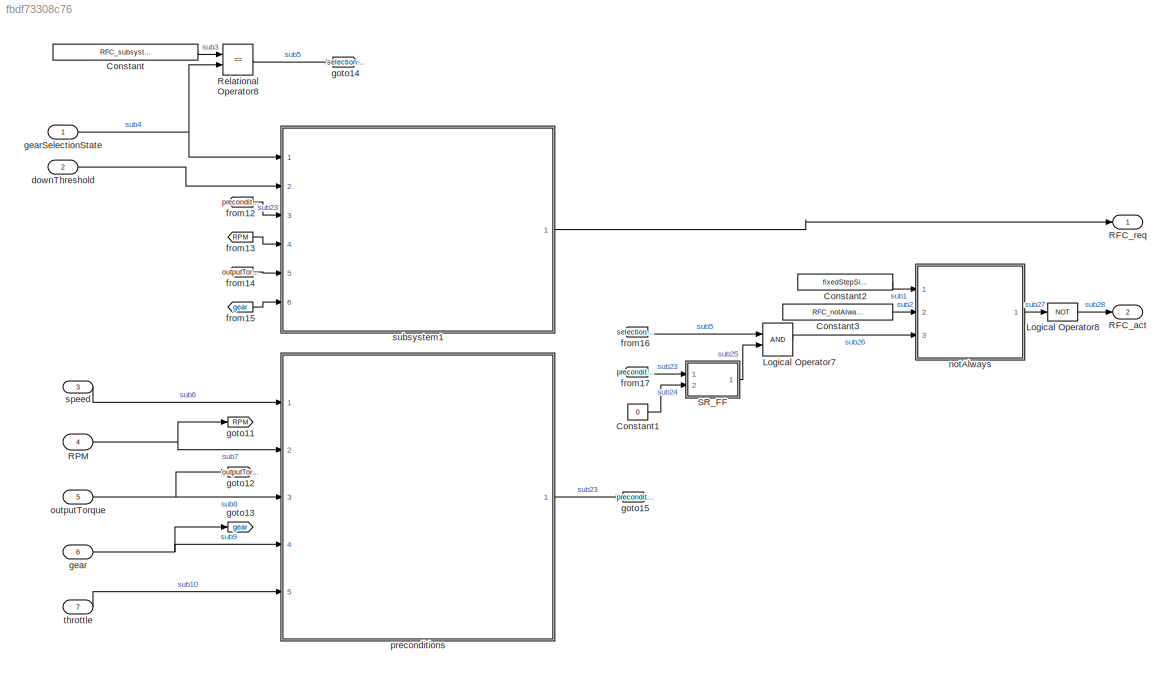
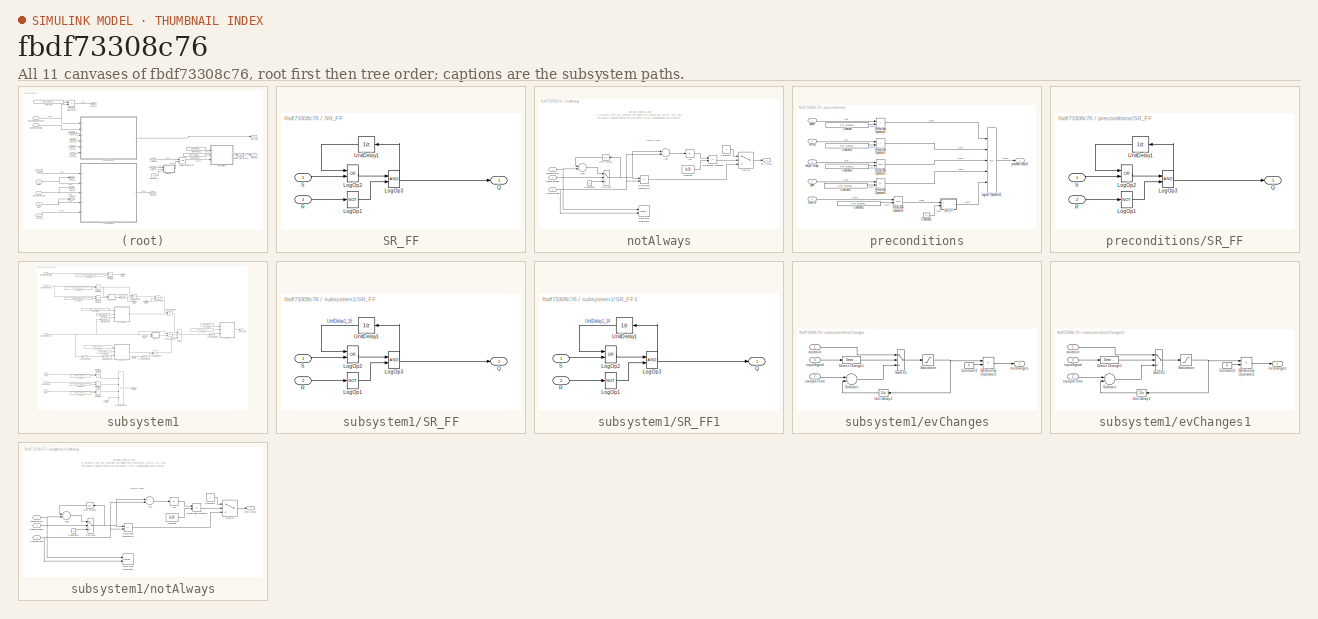
[diagram: thumbnail index - all 11 canvases of the model, root first then tree order]
MODEL slx_fbdf73308c76
KIND model
CONFIG AbsTol = auto
CONFIG EnableMultiTasking = on
CONFIG FixedStep = fixedStepSize
CONFIG MaxStep = 0.001
CONFIG MinStep = auto
CONFIG RelTol = 1e-3
CONFIG SampleTimeConstraint = Unconstrained
CONFIG Solver = FixedStepDiscrete
CONFIG SolverName = FixedStepDiscrete
CONFIG StartTime = 0
CONFIG StopTime = 5
WORKSPACE source: mxarray member
WORKSPACE Occurrence: object (value not decoded)
WORKSPACE Partitions: object (value not decoded)
WORKSPACE Severity: object (value not decoded)
WORKSPACE block: handle (value not decoded)
WORKSPACE t = 0
WORKSPACE time = 0
BLOCK [Constant] Constant
  Value = RFC_subsystem1_gearState
BLOCK [Constant] Constant1
  OutDataTypeStr = boolean
  Value = 0
BLOCK [Constant] Constant2
  Value = fixedStepSize
BLOCK [Constant] Constant3
  Value = RFC_notAlwaysTime
BLOCK [Logic] Logical Operator7
  AllPortsSameDT = off
  OutDataTypeStr = boolean
  Ports = [2, 1]
BLOCK [Logic] Logical Operator8
  AllPortsSameDT = off
  Operator = NOT
  OutDataTypeStr = boolean
  Ports = [1, 1]
BLOCK [Outport] RFC_act
  IconDisplay = Port number
  OutDataTypeStr = boolean
  Port = 2
  PortDimensions = 1
  SamplingMode = Sample based
  SignalType = real
BLOCK [Outport] RFC_req
  IconDisplay = Port number
  OutDataTypeStr = boolean
  PortDimensions = 1
  SamplingMode = Sample based
  SignalType = real
BLOCK [Inport] RPM
  IconDisplay = Port number
  Port = 4
  PortDimensions = 1
  SamplingMode = Sample based
  SignalType = real
BLOCK [RelationalOperator] Relational Operator8
  InputSameDT = off
  Operator = ==
  OutDataTypeStr = boolean
  Ports = [2, 1]
BLOCK [SubSystem] SR_FF
  CopyFcn = set_param(gcbh,'LinkStatus','none');
  Ports = [2, 1]
  RequestExecContextInheritance = off
BLOCK [Logic] SR_FF/LogOp1
  Inputs = 1
  Operator = NOT
  OutDataTypeStr = boolean
  Ports = [1, 1]
  Tag = struct('inputs','1','comment',struct('text','','placement',1),'logdata',struct('maxnumvals',4096,'plotchannels',[],'loggingmode',3,'channels',1),'operator','NOT','output',struct('class','default','description','','address','','unit','-','name','$S_$B','variable','','type','Bool'),'date',733638.68643228011,'scalingvalid',0)  <repeated x4 — deduplicated; at blocks: LogOp1>
BLOCK [Logic] SR_FF/LogOp2
  Operator = OR
  OutDataTypeStr = boolean
  Ports = [2, 1]
  Tag = struct('inputs','2','comment',struct('text','','placement',1),'logdata',struct('maxnumvals',4096,'plotchannels',[],'loggingmode',3,'channels',1),'operator','AND','output',struct('class','default','description','','address','','unit','-','name','$S_$B','variable','','type','Bool'),'date',733638.68643680552,'scalingvalid',0)  <repeated x4 — deduplicated; at blocks: LogOp2>
BLOCK [Logic] SR_FF/LogOp3
  OutDataTypeStr = boolean
  Ports = [2, 1]
  Tag = struct('inputs','2','comment',struct('text','','placement',1),'logdata',struct('maxnumvals',4096,'plotchannels',[],'loggingmode',3,'channels',1),'operator','OR','output',struct('class','default','description','','address','','unit','-','name','$S_$B','variable','','type','Bool'),'date',733638.68644151615,'scalingvalid',0)  <repeated x4 — deduplicated; at blocks: LogOp3>
BLOCK [Outport] SR_FF/Q
  IconDisplay = Port number
  OutDataTypeStr = boolean
  VectorParamsAs1DForOutWhenUnconnected = off
BLOCK [Inport] SR_FF/R
  IconDisplay = Port number
  OutDataTypeStr = boolean
  Port = 2
BLOCK [Inport] SR_FF/S
  IconDisplay = Port number
  OutDataTypeStr = boolean
BLOCK [UnitDelay] SR_FF/UnitDelay1
  HasFrameUpgradeWarning = on
  SampleTime = -1
  Tag = struct('comment',struct('text','','placement',1),'logdata',struct('maxnumvals',4096,'plotchannels',[],'loggingmode',3,'channels',1),'output',struct('width',1,'name','$S_$B','unit','','type','Bool','offset',0,'max',NaN,'min',NaN,'freeze',1,'lsb',1,'arb',0,'class','default','address','','description','','autoscalingmode',1,'lowerheadroom',1,'upperheadroom',1,'headroomunit','bit','checkmin',0,'checkm...<+342ch>  <repeated x4 — deduplicated; at blocks: UnitDelay1>
BLOCK [Inport] downThreshold
  IconDisplay = Port number
  Port = 2
  PortDimensions = 1
  SamplingMode = Sample based
  SignalType = real
BLOCK [From] from12
  AttributesFormatString = %<GotoTag>
  GotoTag = preconditionsOK
BLOCK [From] from13
  AttributesFormatString = %<GotoTag>
  GotoTag = RPM
BLOCK [From] from14
  AttributesFormatString = %<GotoTag>
  GotoTag = outputTorque
BLOCK [From] from15
  AttributesFormatString = %<GotoTag>
  GotoTag = gear
BLOCK [From] from16
  AttributesFormatString = %<GotoTag>
  GotoTag = selectionStateEqual
BLOCK [From] from17
  AttributesFormatString = %<GotoTag>
  GotoTag = preconditionsOK
BLOCK [Inport] gear
  IconDisplay = Port number
  Port = 6
BLOCK [Inport] gearSelectionState
  IconDisplay = Port number
  Interpolate = off
  PortDimensions = 1
  SamplingMode = Sample based
  SignalType = real
BLOCK [Goto] goto11
  AttributesFormatString = %<GotoTag>
  GotoTag = RPM
BLOCK [Goto] goto12
  AttributesFormatString = %<GotoTag>
  GotoTag = outputTorque
BLOCK [Goto] goto13
  AttributesFormatString = %<GotoTag>
  GotoTag = gear
BLOCK [Goto] goto14
  AttributesFormatString = %<GotoTag>
  GotoTag = selectionStateEqual
BLOCK [Goto] goto15
  AttributesFormatString = %<GotoTag>
  GotoTag = preconditionsOK
BLOCK [SubSystem] notAlways
  CopyFcn = set_param(gcbh,'LinkStatus','none');
  Ports = [3, 1]
  RequestExecContextInheritance = off
BLOCK [Abs] notAlways/Abs
  SaturateOnIntegerOverflow = off
BLOCK [Sum] notAlways/Add
  InputSameDT = off
  Inputs = +-
  OutDataTypeStr = Inherit: Inherit via internal rule
  Ports = [2, 1]
  SaturateOnIntegerOverflow = off
BLOCK [Sum] notAlways/Add2
  InputSameDT = off
  OutDataTypeStr = Inherit: Inherit via internal rule
  Ports = [2, 1]
  SaturateOnIntegerOverflow = off
BLOCK [Constant] notAlways/Constant
  Value = 1e-10
BLOCK [Constant] notAlways/Constant1
  OutDataTypeStr = boolean
BLOCK [Constant] notAlways/Constant8
  OutDataTypeStr = Inherit: Inherit via back propagation
  Value = 0
BLOCK [DataTypeDuplicate] notAlways/Data Type Duplicate
  Ports = [2]
BLOCK [RelationalOperator] notAlways/Relational Operator
  InputSameDT = off
  Operator = <=
  OutDataTypeStr = boolean
  Ports = [2, 1]
  RndMeth = Simplest
BLOCK [RelationalOperator] notAlways/Relational Operator14
  InputSameDT = off
  Operator = <=
  OutDataTypeStr = boolean
  Ports = [2, 1]
BLOCK [Switch] notAlways/Switch
  Criteria = u2 ~= 0
  InputSameDT = off
  SaturateOnIntegerOverflow = off
BLOCK [Switch] notAlways/Switch6
  Criteria = u2 ~= 0
  InputSameDT = off
  SaturateOnIntegerOverflow = off
BLOCK [UnitDelay] notAlways/Unit Delay2
  HasFrameUpgradeWarning = on
  SampleTime = -1
BLOCK [Inport] notAlways/inputBoolean
  IconDisplay = Port number
  Port = 3
BLOCK [Outport] notAlways/notAlways
  IconDisplay = Port number
  VectorParamsAs1DForOutWhenUnconnected = off
BLOCK [Inport] notAlways/sampleTime
  IconDisplay = Port number
BLOCK [Inport] notAlways/timeHorizon
  IconDisplay = Port number
  Port = 2
BLOCK [Inport] outputTorque
  IconDisplay = Port number
  Port = 5
  PortDimensions = 1
  SamplingMode = Sample based
  SignalType = real
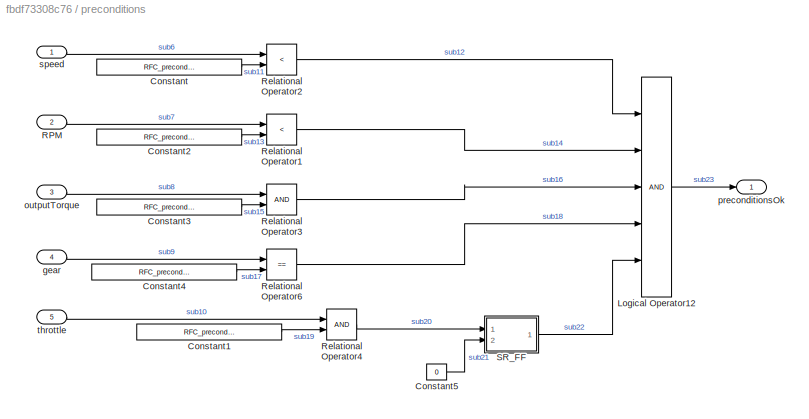
BLOCK [SubSystem] preconditions
  Ports = [5, 1]
  RequestExecContextInheritance = off
BLOCK [Constant] preconditions/Constant
  Value = RFC_preconditions_speedLimit
BLOCK [Constant] preconditions/Constant1
  Value = RFC_preconditions_throttleLimit
BLOCK [Constant] preconditions/Constant2
  Value = RFC_preconditions_rpmLimit
BLOCK [Constant] preconditions/Constant3
  Value = RFC_preconditions_torqueLimit
BLOCK [Constant] preconditions/Constant4
  Value = RFC_preconditions_gear
BLOCK [Constant] preconditions/Constant5
  OutDataTypeStr = boolean
  Value = 0
BLOCK [Logic] preconditions/Logical Operator12
  AllPortsSameDT = off
  Inputs = 5
  OutDataTypeStr = boolean
  Ports = [5, 1]
BLOCK [Inport] preconditions/RPM
  IconDisplay = Port number
  Port = 2
BLOCK [RelationalOperator] preconditions/Relational Operator1
  InputSameDT = off
  Operator = <
  OutDataTypeStr = boolean
  Ports = [2, 1]
BLOCK [RelationalOperator] preconditions/Relational Operator2
  InputSameDT = off
  Operator = <
  OutDataTypeStr = boolean
  Ports = [2, 1]
BLOCK [RelationalOperator] preconditions/Relational Operator3
  InputSameDT = off
  OutDataTypeStr = boolean
  Ports = [2, 1]
BLOCK [RelationalOperator] preconditions/Relational Operator4
  InputSameDT = off
  OutDataTypeStr = boolean
  Ports = [2, 1]
BLOCK [RelationalOperator] preconditions/Relational Operator6
  InputSameDT = off
  Operator = ==
  OutDataTypeStr = boolean
  Ports = [2, 1]
BLOCK [SubSystem] preconditions/SR_FF
  CopyFcn = set_param(gcbh,'LinkStatus','none');
  Ports = [2, 1]
  RequestExecContextInheritance = off
BLOCK [Logic] preconditions/SR_FF/LogOp1
  Inputs = 1
  Operator = NOT
  OutDataTypeStr = boolean
  Ports = [1, 1]
BLOCK [Logic] preconditions/SR_FF/LogOp2
  Operator = OR
  OutDataTypeStr = boolean
  Ports = [2, 1]
BLOCK [Logic] preconditions/SR_FF/LogOp3
  OutDataTypeStr = boolean
  Ports = [2, 1]
BLOCK [Outport] preconditions/SR_FF/Q
  IconDisplay = Port number
  OutDataTypeStr = boolean
  VectorParamsAs1DForOutWhenUnconnected = off
BLOCK [Inport] preconditions/SR_FF/R
  IconDisplay = Port number
  OutDataTypeStr = boolean
  Port = 2
BLOCK [Inport] preconditions/SR_FF/S
  IconDisplay = Port number
  OutDataTypeStr = boolean
BLOCK [UnitDelay] preconditions/SR_FF/UnitDelay1
  HasFrameUpgradeWarning = on
  SampleTime = -1
BLOCK [Inport] preconditions/gear
  IconDisplay = Port number
  Port = 4
BLOCK [Inport] preconditions/outputTorque
  IconDisplay = Port number
  Port = 3
BLOCK [Outport] preconditions/preconditionsOk
  IconDisplay = Port number
BLOCK [Inport] preconditions/speed
  IconDisplay = Port number
  PortDimensions = 1
  SamplingMode = Sample based
  SignalType = real
BLOCK [Inport] preconditions/throttle
  IconDisplay = Port number
  Port = 5
BLOCK [Inport] speed
  IconDisplay = Port number
  Port = 3
  PortDimensions = 1
  SamplingMode = Sample based
  SignalType = real
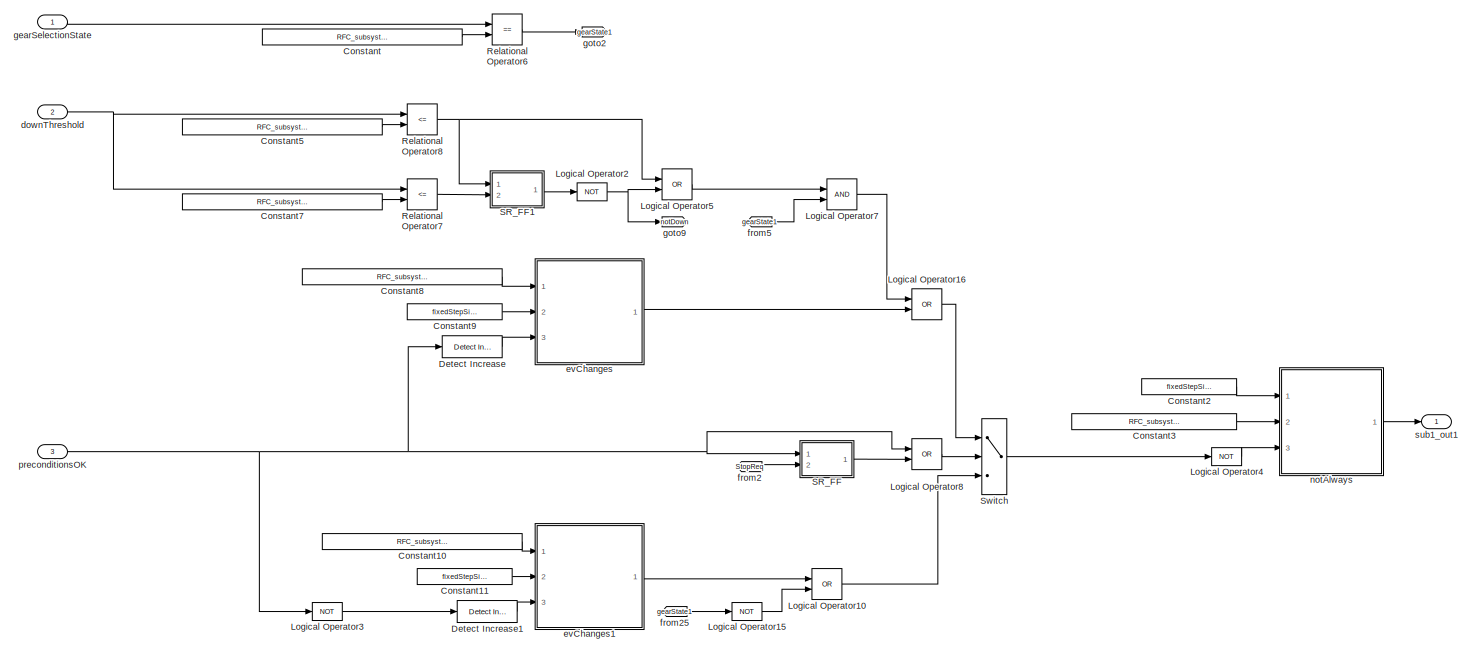
[diagram: subsystem1 - part 1/2, full width, middle band]
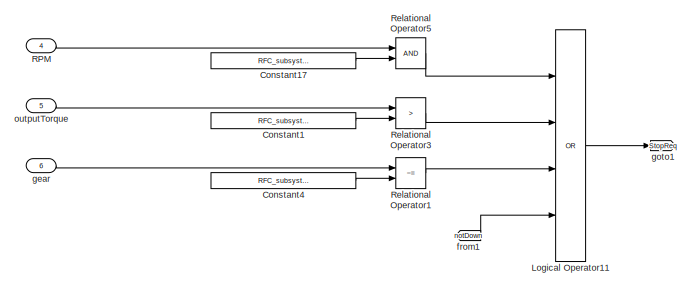
[diagram: subsystem1 - part 2/2, bottom left region]
BLOCK [SubSystem] subsystem1
  Ports = [6, 1]
  RequestExecContextInheritance = off
BLOCK [Constant] subsystem1/Constant
  Value = RFC_subsystem1_gearState
BLOCK [Constant] subsystem1/Constant1
  Value = RFC_subsystem1_torqueLimit
BLOCK [Constant] subsystem1/Constant10
  Value = RFC_subsystem1_evChangesTime2
BLOCK [Constant] subsystem1/Constant11
  Value = fixedStepSize
BLOCK [Constant] subsystem1/Constant17
  Value = RFC_subsystem1_rpmLimit
BLOCK [Constant] subsystem1/Constant2
  Value = fixedStepSize
BLOCK [Constant] subsystem1/Constant3
  Value = RFC_subsystem1_notAlwaysTime
BLOCK [Constant] subsystem1/Constant4
  Value = RFC_subsystem1_gear
BLOCK [Constant] subsystem1/Constant5
  Value = RFC_subsystem1_downThreshold1
BLOCK [Constant] subsystem1/Constant7
  Value = RFC_subsystem1_downThreshold2
BLOCK [Constant] subsystem1/Constant8
  Value = RFC_subsystem1_evChangesTime
BLOCK [Constant] subsystem1/Constant9
  Value = fixedStepSize
BLOCK [Reference] subsystem1/Detect Increase  REF=simulink/Logic and Bit
Operations/Detect
Increase
  Ports = [1, 1]
  SourceBlock = simulink/Logic and Bit\nOperations/Detect\nIncrease
  SourceProductBaseCode = SL
  SourceProductName = Simulink
  SourceType = Detect Increase
BLOCK [Reference] subsystem1/Detect Increase1  REF=simulink/Logic and Bit
Operations/Detect
Increase
  Ports = [1, 1]
  SourceBlock = simulink/Logic and Bit\nOperations/Detect\nIncrease
  SourceProductBaseCode = SL
  SourceProductName = Simulink
  SourceType = Detect Increase
BLOCK [Logic] subsystem1/Logical Operator10
  AllPortsSameDT = off
  Operator = OR
  OutDataTypeStr = boolean
  Ports = [2, 1]
BLOCK [Logic] subsystem1/Logical Operator11
  AllPortsSameDT = off
  Inputs = 4
  Operator = OR
  OutDataTypeStr = boolean
  Ports = [4, 1]
BLOCK [Logic] subsystem1/Logical Operator15
  AllPortsSameDT = off
  Operator = NOT
  OutDataTypeStr = boolean
  Ports = [1, 1]
BLOCK [Logic] subsystem1/Logical Operator16
  AllPortsSameDT = off
  Operator = OR
  OutDataTypeStr = boolean
  Ports = [2, 1]
BLOCK [Logic] subsystem1/Logical Operator2
  AllPortsSameDT = off
  Operator = NOT
  OutDataTypeStr = boolean
  Ports = [1, 1]
BLOCK [Logic] subsystem1/Logical Operator3
  AllPortsSameDT = off
  Operator = NOT
  OutDataTypeStr = boolean
  Ports = [1, 1]
BLOCK [Logic] subsystem1/Logical Operator4
  AllPortsSameDT = off
  Operator = NOT
  OutDataTypeStr = boolean
  Ports = [1, 1]
BLOCK [Logic] subsystem1/Logical Operator5
  AllPortsSameDT = off
  Operator = OR
  OutDataTypeStr = boolean
  Ports = [2, 1]
BLOCK [Logic] subsystem1/Logical Operator7
  AllPortsSameDT = off
  OutDataTypeStr = boolean
  Ports = [2, 1]
BLOCK [Logic] subsystem1/Logical Operator8
  AllPortsSameDT = off
  Operator = OR
  OutDataTypeStr = boolean
  Ports = [2, 1]
BLOCK [Inport] subsystem1/RPM
  IconDisplay = Port number
  Port = 4
BLOCK [RelationalOperator] subsystem1/Relational Operator1
  InputSameDT = off
  Operator = ~=
  OutDataTypeStr = boolean
  Ports = [2, 1]
BLOCK [RelationalOperator] subsystem1/Relational Operator3
  InputSameDT = off
  Operator = >
  OutDataTypeStr = boolean
  Ports = [2, 1]
BLOCK [RelationalOperator] subsystem1/Relational Operator5
  InputSameDT = off
  OutDataTypeStr = boolean
  Ports = [2, 1]
BLOCK [RelationalOperator] subsystem1/Relational Operator6
  InputSameDT = off
  Operator = ==
  OutDataTypeStr = boolean
  Ports = [2, 1]
BLOCK [RelationalOperator] subsystem1/Relational Operator7
  InputSameDT = off
  Operator = <=
  OutDataTypeStr = boolean
  Ports = [2, 1]
BLOCK [RelationalOperator] subsystem1/Relational Operator8
  InputSameDT = off
  Operator = <=
  OutDataTypeStr = boolean
  Ports = [2, 1]
BLOCK [SubSystem] subsystem1/SR_FF
  CopyFcn = set_param(gcbh,'LinkStatus','none');
  Ports = [2, 1]
  RequestExecContextInheritance = off
BLOCK [Logic] subsystem1/SR_FF/LogOp1
  Inputs = 1
  Operator = NOT
  OutDataTypeStr = boolean
  Ports = [1, 1]
BLOCK [Logic] subsystem1/SR_FF/LogOp2
  Operator = OR
  OutDataTypeStr = boolean
  Ports = [2, 1]
BLOCK [Logic] subsystem1/SR_FF/LogOp3
  OutDataTypeStr = boolean
  Ports = [2, 1]
BLOCK [Outport] subsystem1/SR_FF/Q
  IconDisplay = Port number
  OutDataTypeStr = boolean
  VectorParamsAs1DForOutWhenUnconnected = off
BLOCK [Inport] subsystem1/SR_FF/R
  IconDisplay = Port number
  OutDataTypeStr = boolean
  Port = 2
BLOCK [Inport] subsystem1/SR_FF/S
  IconDisplay = Port number
  OutDataTypeStr = boolean
BLOCK [UnitDelay] subsystem1/SR_FF/UnitDelay1
  HasFrameUpgradeWarning = on
  SampleTime = -1
BLOCK [SubSystem] subsystem1/SR_FF1
  CopyFcn = set_param(gcbh,'LinkStatus','none');
  Ports = [2, 1]
  RequestExecContextInheritance = off
BLOCK [Logic] subsystem1/SR_FF1/LogOp1
  Inputs = 1
  Operator = NOT
  OutDataTypeStr = boolean
  Ports = [1, 1]
BLOCK [Logic] subsystem1/SR_FF1/LogOp2
  Operator = OR
  OutDataTypeStr = boolean
  Ports = [2, 1]
BLOCK [Logic] subsystem1/SR_FF1/LogOp3
  OutDataTypeStr = boolean
  Ports = [2, 1]
BLOCK [Outport] subsystem1/SR_FF1/Q
  IconDisplay = Port number
  OutDataTypeStr = boolean
  VectorParamsAs1DForOutWhenUnconnected = off
BLOCK [Inport] subsystem1/SR_FF1/R
  IconDisplay = Port number
  OutDataTypeStr = boolean
  Port = 2
BLOCK [Inport] subsystem1/SR_FF1/S
  IconDisplay = Port number
  OutDataTypeStr = boolean
BLOCK [UnitDelay] subsystem1/SR_FF1/UnitDelay1
  HasFrameUpgradeWarning = on
  SampleTime = -1
BLOCK [Switch] subsystem1/Switch
  Criteria = u2 ~= 0
  InputSameDT = off
  SaturateOnIntegerOverflow = off
BLOCK [Inport] subsystem1/downThreshold
  IconDisplay = Port number
  Port = 2
BLOCK [SubSystem] subsystem1/evChanges
  CopyFcn = set_param(gcbh,'LinkStatus','none');
  Ports = [3, 1]
  RequestExecContextInheritance = off
BLOCK [Constant] subsystem1/evChanges/Constant1
  Value = 0
BLOCK [Reference] subsystem1/evChanges/Detect Change1  REF=simulink/Logic and Bit
Operations/Detect
Change
  Ports = [1, 1]
  SourceBlock = simulink/Logic and Bit\nOperations/Detect\nChange
  SourceProductBaseCode = SL
  SourceProductName = Simulink
  SourceType = Detect Change
BLOCK [RelationalOperator] subsystem1/evChanges/Relational Operator1
  InputSameDT = off
  Operator = >
  OutDataTypeStr = boolean
  Ports = [2, 1]
BLOCK [Saturate] subsystem1/evChanges/Saturation
  InputPortMap = u0
  LowerLimit = 0
  Ports = [1, 1]
  UpperLimit = Inf
BLOCK [Sum] subsystem1/evChanges/Subtract
  InputSameDT = off
  Inputs = -+
  OutDataTypeStr = Inherit: Inherit via internal rule
  Ports = [2, 1]
  SaturateOnIntegerOverflow = off
BLOCK [Switch] subsystem1/evChanges/Switch1
  Criteria = u2 ~= 0
  InputSameDT = off
  SaturateOnIntegerOverflow = off
BLOCK [UnitDelay] subsystem1/evChanges/Unit Delay1
  HasFrameUpgradeWarning = on
  SampleTime = -1
BLOCK [Inport] subsystem1/evChanges/duration
  IconDisplay = Port number
BLOCK [Outport] subsystem1/evChanges/evChanges
  IconDisplay = Port number
  VectorParamsAs1DForOutWhenUnconnected = off
BLOCK [Inport] subsystem1/evChanges/inputSignal
  IconDisplay = Port number
  Port = 3
BLOCK [Inport] subsystem1/evChanges/sampleTime
  IconDisplay = Port number
  Port = 2
BLOCK [SubSystem] subsystem1/evChanges1
  CopyFcn = set_param(gcbh,'LinkStatus','none');
  Ports = [3, 1]
  RequestExecContextInheritance = off
BLOCK [Constant] subsystem1/evChanges1/Constant1
  Value = 0
BLOCK [Reference] subsystem1/evChanges1/Detect Change1  REF=simulink/Logic and Bit
Operations/Detect
Change
  Ports = [1, 1]
  SourceBlock = simulink/Logic and Bit\nOperations/Detect\nChange
  SourceProductBaseCode = SL
  SourceProductName = Simulink
  SourceType = Detect Change
BLOCK [RelationalOperator] subsystem1/evChanges1/Relational Operator1
  InputSameDT = off
  Operator = >
  OutDataTypeStr = boolean
  Ports = [2, 1]
BLOCK [Saturate] subsystem1/evChanges1/Saturation
  InputPortMap = u0
  LowerLimit = 0
  Ports = [1, 1]
  UpperLimit = Inf
BLOCK [Sum] subsystem1/evChanges1/Subtract
  InputSameDT = off
  Inputs = -+
  OutDataTypeStr = Inherit: Inherit via internal rule
  Ports = [2, 1]
  SaturateOnIntegerOverflow = off
BLOCK [Switch] subsystem1/evChanges1/Switch1
  Criteria = u2 ~= 0
  InputSameDT = off
  SaturateOnIntegerOverflow = off
BLOCK [UnitDelay] subsystem1/evChanges1/Unit Delay1
  HasFrameUpgradeWarning = on
  SampleTime = -1
BLOCK [Inport] subsystem1/evChanges1/duration
  IconDisplay = Port number
BLOCK [Outport] subsystem1/evChanges1/evChanges
  IconDisplay = Port number
  VectorParamsAs1DForOutWhenUnconnected = off
BLOCK [Inport] subsystem1/evChanges1/inputSignal
  IconDisplay = Port number
  Port = 3
BLOCK [Inport] subsystem1/evChanges1/sampleTime
  IconDisplay = Port number
  Port = 2
BLOCK [From] subsystem1/from1
  AttributesFormatString = %<GotoTag>
  GotoTag = notDown
BLOCK [From] subsystem1/from2
  AttributesFormatString = %<GotoTag>
  GotoTag = StopReq
BLOCK [From] subsystem1/from25
  AttributesFormatString = %<GotoTag>
  GotoTag = gearState1
BLOCK [From] subsystem1/from5
  AttributesFormatString = %<GotoTag>
  GotoTag = gearState1
BLOCK [Inport] subsystem1/gear
  IconDisplay = Port number
  Port = 6
BLOCK [Inport] subsystem1/gearSelectionState
  IconDisplay = Port number
BLOCK [Goto] subsystem1/goto1
  AttributesFormatString = %<GotoTag>
  GotoTag = StopReq
BLOCK [Goto] subsystem1/goto2
  AttributesFormatString = %<GotoTag>
  GotoTag = gearState1
BLOCK [Goto] subsystem1/goto9
  AttributesFormatString = %<GotoTag>
  GotoTag = notDown
BLOCK [SubSystem] subsystem1/notAlways
  CopyFcn = set_param(gcbh,'LinkStatus','none');
  Ports = [3, 1]
  RequestExecContextInheritance = off
BLOCK [Abs] subsystem1/notAlways/Abs
  SaturateOnIntegerOverflow = off
BLOCK [Sum] subsystem1/notAlways/Add
  InputSameDT = off
  Inputs = +-
  OutDataTypeStr = Inherit: Inherit via internal rule
  Ports = [2, 1]
  SaturateOnIntegerOverflow = off
BLOCK [Sum] subsystem1/notAlways/Add2
  InputSameDT = off
  OutDataTypeStr = Inherit: Inherit via internal rule
  Ports = [2, 1]
  SaturateOnIntegerOverflow = off
BLOCK [Constant] subsystem1/notAlways/Constant
  Value = 1e-10
BLOCK [Constant] subsystem1/notAlways/Constant1
  OutDataTypeStr = boolean
BLOCK [Constant] subsystem1/notAlways/Constant8
  OutDataTypeStr = Inherit: Inherit via back propagation
  Value = 0
BLOCK [DataTypeDuplicate] subsystem1/notAlways/Data Type Duplicate
  Ports = [2]
BLOCK [RelationalOperator] subsystem1/notAlways/Relational Operator
  InputSameDT = off
  Operator = <=
  OutDataTypeStr = boolean
  Ports = [2, 1]
  RndMeth = Simplest
BLOCK [RelationalOperator] subsystem1/notAlways/Relational Operator14
  InputSameDT = off
  Operator = <=
  OutDataTypeStr = boolean
  Ports = [2, 1]
BLOCK [Switch] subsystem1/notAlways/Switch
  Criteria = u2 ~= 0
  InputSameDT = off
  SaturateOnIntegerOverflow = off
BLOCK [Switch] subsystem1/notAlways/Switch6
  Criteria = u2 ~= 0
  InputSameDT = off
  SaturateOnIntegerOverflow = off
BLOCK [UnitDelay] subsystem1/notAlways/Unit Delay2
  HasFrameUpgradeWarning = on
  SampleTime = -1
BLOCK [Inport] subsystem1/notAlways/inputBoolean
  IconDisplay = Port number
  Port = 3
BLOCK [Outport] subsystem1/notAlways/notAlways
  IconDisplay = Port number
  VectorParamsAs1DForOutWhenUnconnected = off
BLOCK [Inport] subsystem1/notAlways/sampleTime
  IconDisplay = Port number
BLOCK [Inport] subsystem1/notAlways/timeHorizon
  IconDisplay = Port number
  Port = 2
BLOCK [Inport] subsystem1/outputTorque
  IconDisplay = Port number
  Port = 5
BLOCK [Inport] subsystem1/preconditionsOK
  IconDisplay = Port number
  Port = 3
BLOCK [Outport] subsystem1/sub1_out1
  IconDisplay = Port number
BLOCK [Inport] throttle
  IconDisplay = Port number
  Interpolate = off
  Port = 7
  PortDimensions = 1
  SamplingMode = Sample based
  SignalType = real
ANNOTATION notAlways: We add a special case: If the sum is very very close but just above the timeHorizon, we will still send TRUE as output! The reason is because sometimes the counter is e.g. 1.000000000001 and timeHorizon is 1, which is essentially just a floating point error.
ANNOTATION notAlways: Special check
ANNOTATION subsystem1/notAlways: We add a special case: If the sum is very very close but just above the timeHorizon, we will still send TRUE as output! The reason is because sometimes the counter is e.g. 1.000000000001 and timeHorizon is 1, which is essentially just a floating point error.
ANNOTATION subsystem1/notAlways: Special check
LINE Constant1:1 -> SR_FF:2
LINE Constant2:1 -> notAlways:1
LINE Constant3:1 -> notAlways:2
LINE Constant:1 -> Relational Operator8:1
LINE Logical Operator7:1 -> notAlways:3
LINE Logical Operator8:1 -> RFC_act:1
NET RPM:1 -> goto11:1, preconditions:2
LINE Relational Operator8:1 -> goto14:1
LINE SR_FF/LogOp1:1 -> SR_FF/LogOp3:2
LINE SR_FF/LogOp2:1 -> SR_FF/LogOp3:1
NET SR_FF/LogOp3:1 -> SR_FF/Q:1, SR_FF/UnitDelay1:1
LINE SR_FF/R:1 -> SR_FF/LogOp1:1
LINE SR_FF/S:1 -> SR_FF/LogOp2:2
LINE SR_FF/UnitDelay1:1 -> SR_FF/LogOp2:1
LINE SR_FF:1 -> Logical Operator7:2
LINE downThreshold:1 -> subsystem1:2
LINE from12:1 -> subsystem1:3
LINE from13:1 -> subsystem1:4
LINE from14:1 -> subsystem1:5
LINE from15:1 -> subsystem1:6
LINE from16:1 -> Logical Operator7:1
LINE from17:1 -> SR_FF:1
NET gear:1 -> goto13:1, preconditions:4
NET gearSelectionState:1 -> Relational Operator8:2, subsystem1:1
LINE notAlways/Abs:1 -> notAlways/Relational Operator:1
LINE notAlways/Add2:1 -> notAlways/Switch6:1
LINE notAlways/Add:1 -> notAlways/Abs:1
LINE notAlways/Constant1:1 -> notAlways/Switch:1
LINE notAlways/Constant8:1 -> notAlways/Switch6:3
LINE notAlways/Constant:1 -> notAlways/Relational Operator:2
LINE notAlways/Relational Operator14:1 -> notAlways/Switch:3
LINE notAlways/Relational Operator:1 -> notAlways/Switch:2
NET notAlways/Switch6:1 -> notAlways/Add:1, notAlways/Relational Operator14:1, notAlways/Unit Delay2:1
LINE notAlways/Switch:1 -> notAlways/notAlways:1
LINE notAlways/Unit Delay2:1 -> notAlways/Add2:1
LINE notAlways/inputBoolean:1 -> notAlways/Switch6:2
NET notAlways/sampleTime:1 -> notAlways/Add2:2, notAlways/Data Type Duplicate:1
NET notAlways/timeHorizon:1 -> notAlways/Add:2, notAlways/Data Type Duplicate:2, notAlways/Relational Operator14:2
LINE notAlways:1 -> Logical Operator8:1
NET outputTorque:1 -> goto12:1, preconditions:3
LINE preconditions/Constant1:1 -> preconditions/Relational Operator4:2
LINE preconditions/Constant2:1 -> preconditions/Relational Operator1:2
LINE preconditions/Constant3:1 -> preconditions/Relational Operator3:2
LINE preconditions/Constant4:1 -> preconditions/Relational Operator6:2
LINE preconditions/Constant5:1 -> preconditions/SR_FF:2
LINE preconditions/Constant:1 -> preconditions/Relational Operator2:2
LINE preconditions/Logical Operator12:1 -> preconditions/preconditionsOk:1
LINE preconditions/RPM:1 -> preconditions/Relational Operator1:1
LINE preconditions/Relational Operator1:1 -> preconditions/Logical Operator12:2
LINE preconditions/Relational Operator2:1 -> preconditions/Logical Operator12:1
LINE preconditions/Relational Operator3:1 -> preconditions/Logical Operator12:3
LINE preconditions/Relational Operator4:1 -> preconditions/SR_FF:1
LINE preconditions/Relational Operator6:1 -> preconditions/Logical Operator12:4
LINE preconditions/SR_FF/LogOp1:1 -> preconditions/SR_FF/LogOp3:2
LINE preconditions/SR_FF/LogOp2:1 -> preconditions/SR_FF/LogOp3:1
NET preconditions/SR_FF/LogOp3:1 -> preconditions/SR_FF/Q:1, preconditions/SR_FF/UnitDelay1:1
LINE preconditions/SR_FF/R:1 -> preconditions/SR_FF/LogOp1:1
LINE preconditions/SR_FF/S:1 -> preconditions/SR_FF/LogOp2:2
LINE preconditions/SR_FF/UnitDelay1:1 -> preconditions/SR_FF/LogOp2:1
LINE preconditions/SR_FF:1 -> preconditions/Logical Operator12:5
LINE preconditions/gear:1 -> preconditions/Relational Operator6:1
LINE preconditions/outputTorque:1 -> preconditions/Relational Operator3:1
LINE preconditions/speed:1 -> preconditions/Relational Operator2:1
LINE preconditions/throttle:1 -> preconditions/Relational Operator4:1
LINE preconditions:1 -> goto15:1
LINE speed:1 -> preconditions:1
LINE subsystem1/Constant10:1 -> subsystem1/evChanges1:1
LINE subsystem1/Constant11:1 -> subsystem1/evChanges1:2
LINE subsystem1/Constant17:1 -> subsystem1/Relational Operator5:2
LINE subsystem1/Constant1:1 -> subsystem1/Relational Operator3:2
LINE subsystem1/Constant2:1 -> subsystem1/notAlways:1
LINE subsystem1/Constant3:1 -> subsystem1/notAlways:2
LINE subsystem1/Constant4:1 -> subsystem1/Relational Operator1:2
LINE subsystem1/Constant5:1 -> subsystem1/Relational Operator8:2
LINE subsystem1/Constant7:1 -> subsystem1/Relational Operator7:2
LINE subsystem1/Constant8:1 -> subsystem1/evChanges:1
LINE subsystem1/Constant9:1 -> subsystem1/evChanges:2
LINE subsystem1/Constant:1 -> subsystem1/Relational Operator6:2
LINE subsystem1/Detect Increase1:1 -> subsystem1/evChanges1:3
LINE subsystem1/Detect Increase:1 -> subsystem1/evChanges:3
LINE subsystem1/Logical Operator10:1 -> subsystem1/Switch:3
LINE subsystem1/Logical Operator11:1 -> subsystem1/goto1:1
LINE subsystem1/Logical Operator15:1 -> subsystem1/Logical Operator10:2
LINE subsystem1/Logical Operator16:1 -> subsystem1/Switch:1
NET subsystem1/Logical Operator2:1 -> subsystem1/Logical Operator5:2, subsystem1/goto9:1
LINE subsystem1/Logical Operator3:1 -> subsystem1/Detect Increase1:1
LINE subsystem1/Logical Operator4:1 -> subsystem1/notAlways:3
LINE subsystem1/Logical Operator5:1 -> subsystem1/Logical Operator7:1
LINE subsystem1/Logical Operator7:1 -> subsystem1/Logical Operator16:1
LINE subsystem1/Logical Operator8:1 -> subsystem1/Switch:2
LINE subsystem1/RPM:1 -> subsystem1/Relational Operator5:1
LINE subsystem1/Relational Operator1:1 -> subsystem1/Logical Operator11:3
LINE subsystem1/Relational Operator3:1 -> subsystem1/Logical Operator11:2
LINE subsystem1/Relational Operator5:1 -> subsystem1/Logical Operator11:1
LINE subsystem1/Relational Operator6:1 -> subsystem1/goto2:1
LINE subsystem1/Relational Operator7:1 -> subsystem1/SR_FF1:2
NET subsystem1/Relational Operator8:1 -> subsystem1/Logical Operator5:1, subsystem1/SR_FF1:1
LINE subsystem1/SR_FF/LogOp1:1 -> subsystem1/SR_FF/LogOp3:2
LINE subsystem1/SR_FF/LogOp2:1 -> subsystem1/SR_FF/LogOp3:1
NET subsystem1/SR_FF/LogOp3:1 -> subsystem1/SR_FF/Q:1, subsystem1/SR_FF/UnitDelay1:1
LINE subsystem1/SR_FF/R:1 -> subsystem1/SR_FF/LogOp1:1
LINE subsystem1/SR_FF/S:1 -> subsystem1/SR_FF/LogOp2:2
LINE subsystem1/SR_FF/UnitDelay1:1 -> subsystem1/SR_FF/LogOp2:1
LINE subsystem1/SR_FF1/LogOp1:1 -> subsystem1/SR_FF1/LogOp3:2
LINE subsystem1/SR_FF1/LogOp2:1 -> subsystem1/SR_FF1/LogOp3:1
NET subsystem1/SR_FF1/LogOp3:1 -> subsystem1/SR_FF1/Q:1, subsystem1/SR_FF1/UnitDelay1:1
LINE subsystem1/SR_FF1/R:1 -> subsystem1/SR_FF1/LogOp1:1
LINE subsystem1/SR_FF1/S:1 -> subsystem1/SR_FF1/LogOp2:2
LINE subsystem1/SR_FF1/UnitDelay1:1 -> subsystem1/SR_FF1/LogOp2:1
LINE subsystem1/SR_FF1:1 -> subsystem1/Logical Operator2:1
LINE subsystem1/SR_FF:1 -> subsystem1/Logical Operator8:2
LINE subsystem1/Switch:1 -> subsystem1/Logical Operator4:1
NET subsystem1/downThreshold:1 -> subsystem1/Relational Operator7:1, subsystem1/Relational Operator8:1
LINE subsystem1/evChanges/Constant1:1 -> subsystem1/evChanges/Relational Operator1:2
LINE subsystem1/evChanges/Detect Change1:1 -> subsystem1/evChanges/Switch1:2
LINE subsystem1/evChanges/Relational Operator1:1 -> subsystem1/evChanges/evChanges:1
NET subsystem1/evChanges/Saturation:1 -> subsystem1/evChanges/Relational Operator1:1, subsystem1/evChanges/Unit Delay1:1
LINE subsystem1/evChanges/Subtract:1 -> subsystem1/evChanges/Switch1:3
LINE subsystem1/evChanges/Switch1:1 -> subsystem1/evChanges/Saturation:1
LINE subsystem1/evChanges/Unit Delay1:1 -> subsystem1/evChanges/Subtract:2
LINE subsystem1/evChanges/duration:1 -> subsystem1/evChanges/Switch1:1
LINE subsystem1/evChanges/inputSignal:1 -> subsystem1/evChanges/Detect Change1:1
LINE subsystem1/evChanges/sampleTime:1 -> subsystem1/evChanges/Subtract:1
LINE subsystem1/evChanges1/Constant1:1 -> subsystem1/evChanges1/Relational Operator1:2
LINE subsystem1/evChanges1/Detect Change1:1 -> subsystem1/evChanges1/Switch1:2
LINE subsystem1/evChanges1/Relational Operator1:1 -> subsystem1/evChanges1/evChanges:1
NET subsystem1/evChanges1/Saturation:1 -> subsystem1/evChanges1/Relational Operator1:1, subsystem1/evChanges1/Unit Delay1:1
LINE subsystem1/evChanges1/Subtract:1 -> subsystem1/evChanges1/Switch1:3
LINE subsystem1/evChanges1/Switch1:1 -> subsystem1/evChanges1/Saturation:1
LINE subsystem1/evChanges1/Unit Delay1:1 -> subsystem1/evChanges1/Subtract:2
LINE subsystem1/evChanges1/duration:1 -> subsystem1/evChanges1/Switch1:1
LINE subsystem1/evChanges1/inputSignal:1 -> subsystem1/evChanges1/Detect Change1:1
LINE subsystem1/evChanges1/sampleTime:1 -> subsystem1/evChanges1/Subtract:1
LINE subsystem1/evChanges1:1 -> subsystem1/Logical Operator10:1
LINE subsystem1/evChanges:1 -> subsystem1/Logical Operator16:2
LINE subsystem1/from1:1 -> subsystem1/Logical Operator11:4
LINE subsystem1/from25:1 -> subsystem1/Logical Operator15:1
LINE subsystem1/from2:1 -> subsystem1/SR_FF:2
LINE subsystem1/from5:1 -> subsystem1/Logical Operator7:2
LINE subsystem1/gear:1 -> subsystem1/Relational Operator1:1
LINE subsystem1/gearSelectionState:1 -> subsystem1/Relational Operator6:1
LINE subsystem1/notAlways/Abs:1 -> subsystem1/notAlways/Relational Operator:1
LINE subsystem1/notAlways/Add2:1 -> subsystem1/notAlways/Switch6:1
LINE subsystem1/notAlways/Add:1 -> subsystem1/notAlways/Abs:1
LINE subsystem1/notAlways/Constant1:1 -> subsystem1/notAlways/Switch:1
LINE subsystem1/notAlways/Constant8:1 -> subsystem1/notAlways/Switch6:3
LINE subsystem1/notAlways/Constant:1 -> subsystem1/notAlways/Relational Operator:2
LINE subsystem1/notAlways/Relational Operator14:1 -> subsystem1/notAlways/Switch:3
LINE subsystem1/notAlways/Relational Operator:1 -> subsystem1/notAlways/Switch:2
NET subsystem1/notAlways/Switch6:1 -> subsystem1/notAlways/Add:1, subsystem1/notAlways/Relational Operator14:1, subsystem1/notAlways/Unit Delay2:1
LINE subsystem1/notAlways/Switch:1 -> subsystem1/notAlways/notAlways:1
LINE subsystem1/notAlways/Unit Delay2:1 -> subsystem1/notAlways/Add2:1
LINE subsystem1/notAlways/inputBoolean:1 -> subsystem1/notAlways/Switch6:2
NET subsystem1/notAlways/sampleTime:1 -> subsystem1/notAlways/Add2:2, subsystem1/notAlways/Data Type Duplicate:1
NET subsystem1/notAlways/timeHorizon:1 -> subsystem1/notAlways/Add:2, subsystem1/notAlways/Data Type Duplicate:2, subsystem1/notAlways/Relational Operator14:2
LINE subsystem1/notAlways:1 -> subsystem1/sub1_out1:1
LINE subsystem1/outputTorque:1 -> subsystem1/Relational Operator3:1
NET subsystem1/preconditionsOK:1 -> subsystem1/Detect Increase:1, subsystem1/Logical Operator3:1, subsystem1/Logical Operator8:1, subsystem1/SR_FF:1
LINE subsystem1:1 -> RFC_req:1
LINE throttle:1 -> preconditions:5
note: NET lines group one-source signal fan-out (src -> all destinations, sorted); 1:1 wires keep LINE
